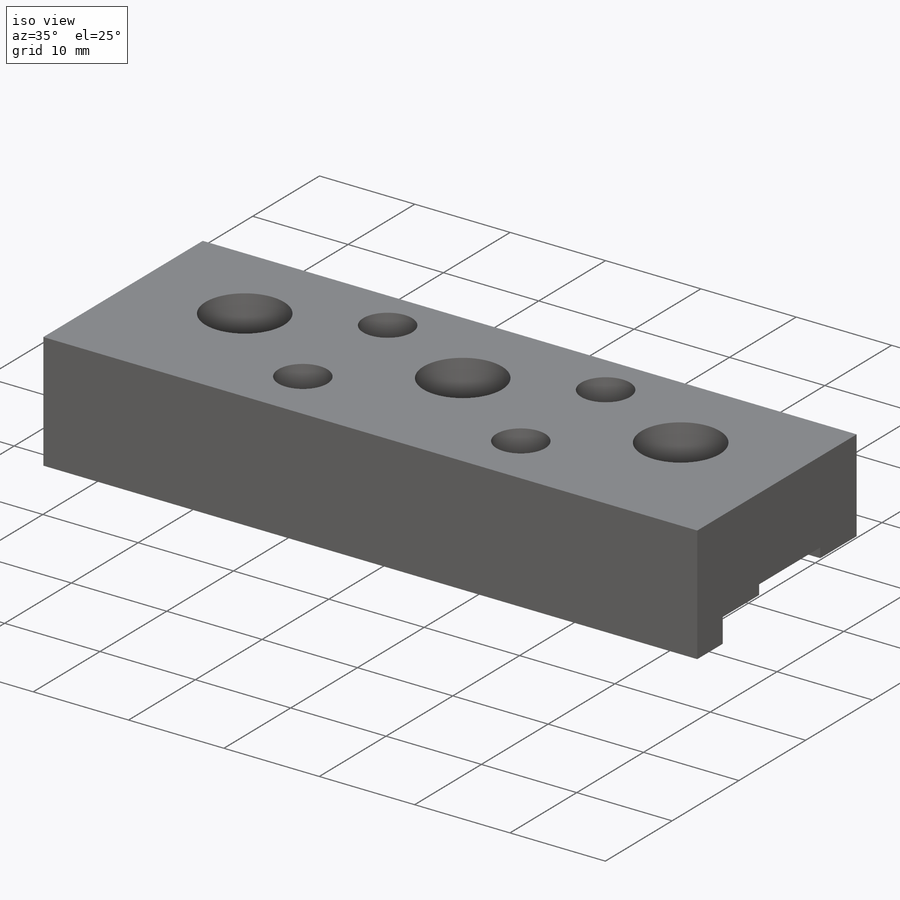
[diagram: iso view]
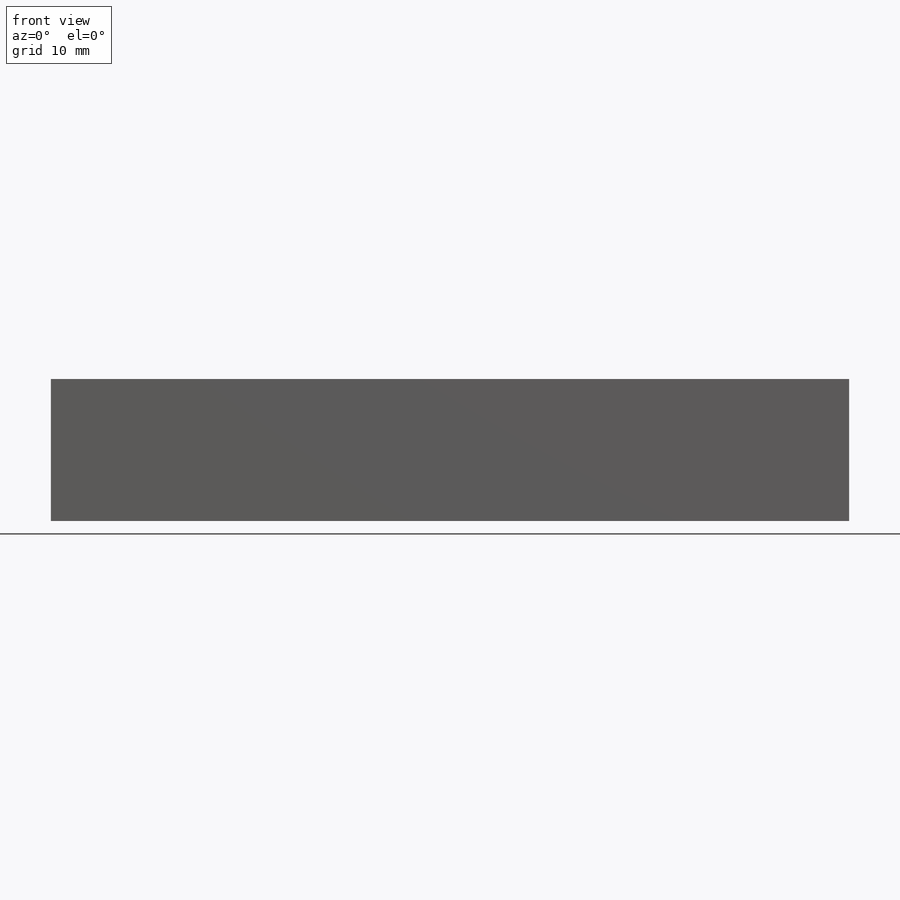
[diagram: front view]
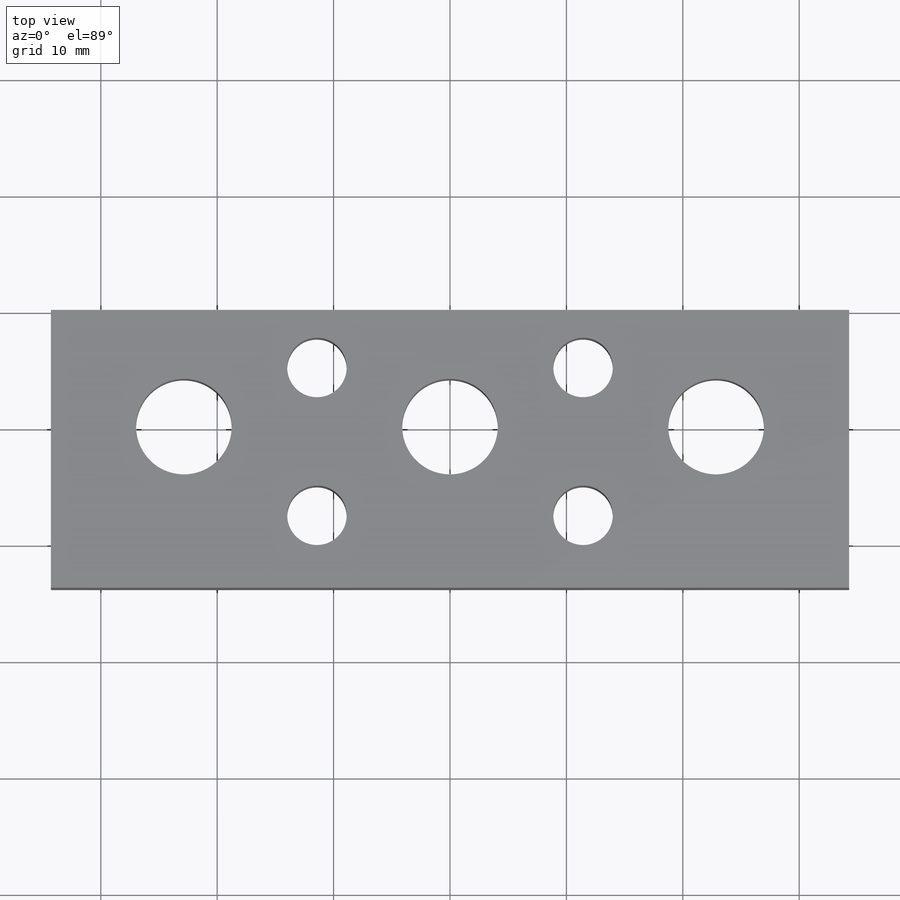
[diagram: top view]
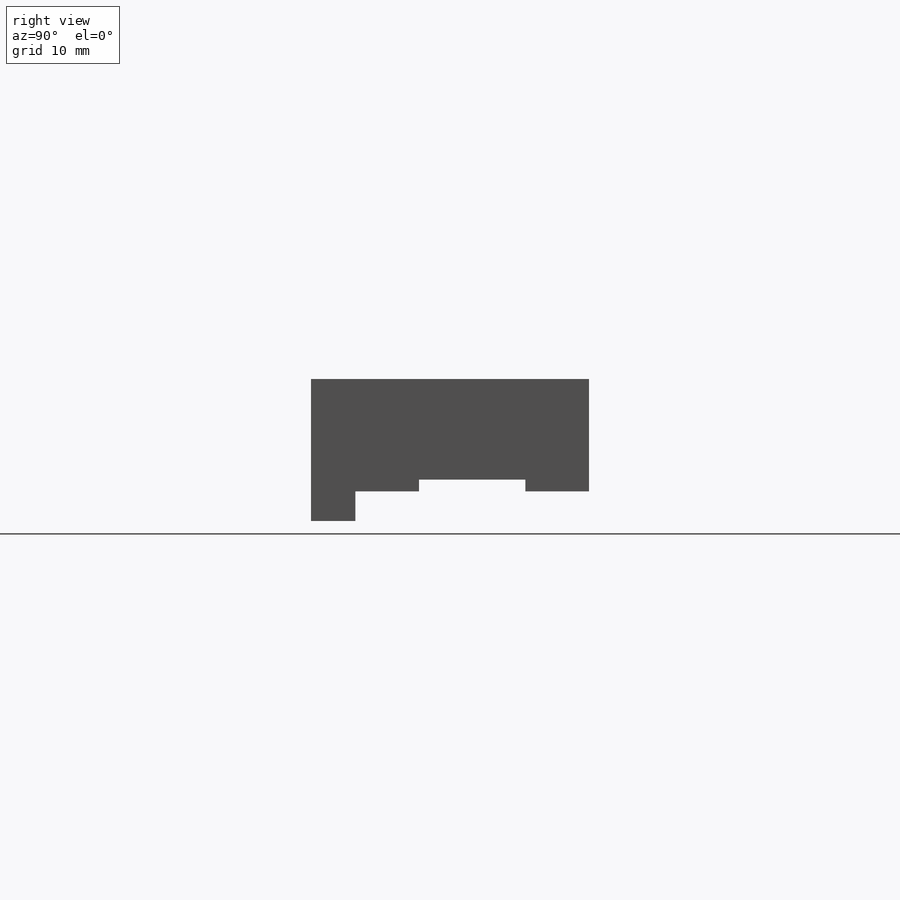
[diagram: right view]
SOLIDWORKS PART (.sldprt)
format: sldprt  version: not decoded by parser v0  size: 635,904 bytes
history: native  units: mm
features: sketch x8, thread x4, extrude x2, hole x2, cut_extrude x2, material x1 + 1 further entry (+10 scaffold rows collapsed)
feature tree (30):
  scaffold x10  (default folders/planes/origin — collapsed)
  material  "304 SSTL"
  "Origin"  ID=392984584
  sketch  "Sketch1"  dims[D1=68.58mm D2=22.86mm]
  extrude  "Extrude1"  Depth=9.652mm
  sketch  "Sketch4"  dims[D1=1.4478mm D2=3.81mm]
  extrude  "Extrude3"  Depth=2.54mm
  hole  "5/16 Clearance Hole1"  Diameter=8.2042mm Depth=9.652mm
  sketch  "3DSketch1"  dims[c1.D1=45.72mm c1.D2=~23.025873mm c1.D4=22.86mm c1.D3=11.43mm c2.D4=11.43mm c2.D3=11.43mm c3.D4=11.43mm c3.D3=10.033mm]
  sketch  "Sketch2"  dims[hole-wizard template sketch: 59 standard entries collapsed; hole parameters kept: c18.Thru Hole Dia.=8.2042mm c18.Thru Hole Depth=9.652mm]
  sketch  "Sketch3"  dims[c1.D1=6.35mm c1.D2=4.318mm c2.D1=10.16mm]
  cut_extrude  "Extrude2"  Depth=1.016mm
  sketch  "Sketch6"  dims[D1=1.3462mm]
  cut_extrude  "Cut-Extrude2"  [1 undecoded]
  hole  "1/4-20 Tapped Hole1"  Diameter=5.1054mm Depth=19.05mm
  sketch  "Sketch8"  dims[c1.D5=8.2042mm c1.D1=11.43mm c1.D2=11.43mm c1.D3=7.62mm c1.D4=5.588mm c2.D3=6.223mm c2.D4=12.7mm]
  sketch  "Sketch7"  dims[hole-wizard template sketch: 50 standard entries collapsed; hole parameters above]
  thread  "Hole Thread1"  Diameter=9.652mm  [1 undecoded]
  thread  "Hole Thread2"  Diameter=12.192mm  [1 undecoded]
  thread  "Hole Thread3"  Diameter=12.192mm  [1 undecoded]
  thread  "Hole Thread4"  Diameter=9.652mm  [1 undecoded]
decode coverage: 17 of 18 modeling features carry decoded parameters; 1 rows unclassified (native names shown)
note: ~ marks probable driven/reference dimensions
note: 5 parameter values undecoded
note: suppression state not decoded; provenance and decode notes live in map.json
